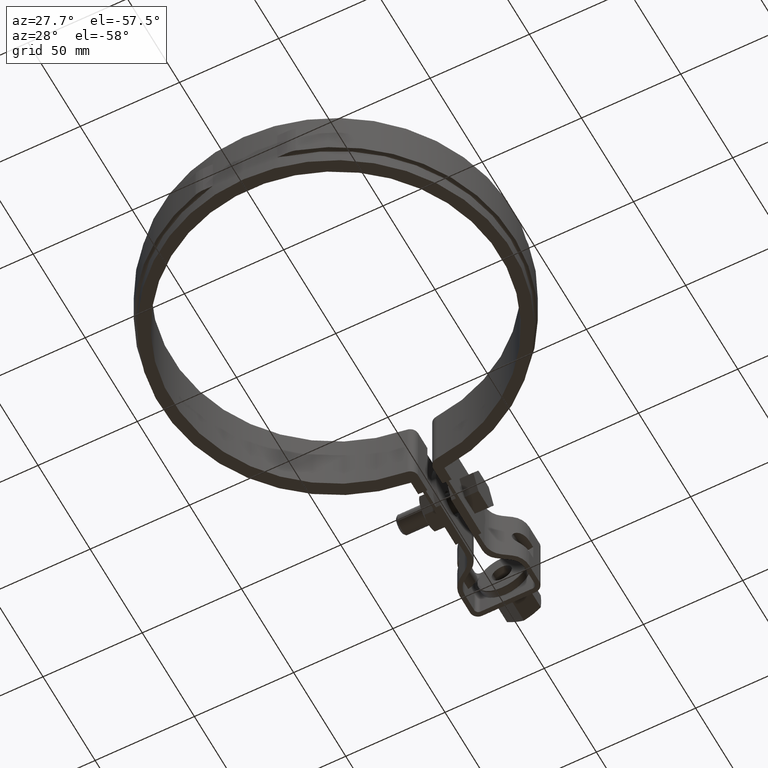
[diagram: clean part render]
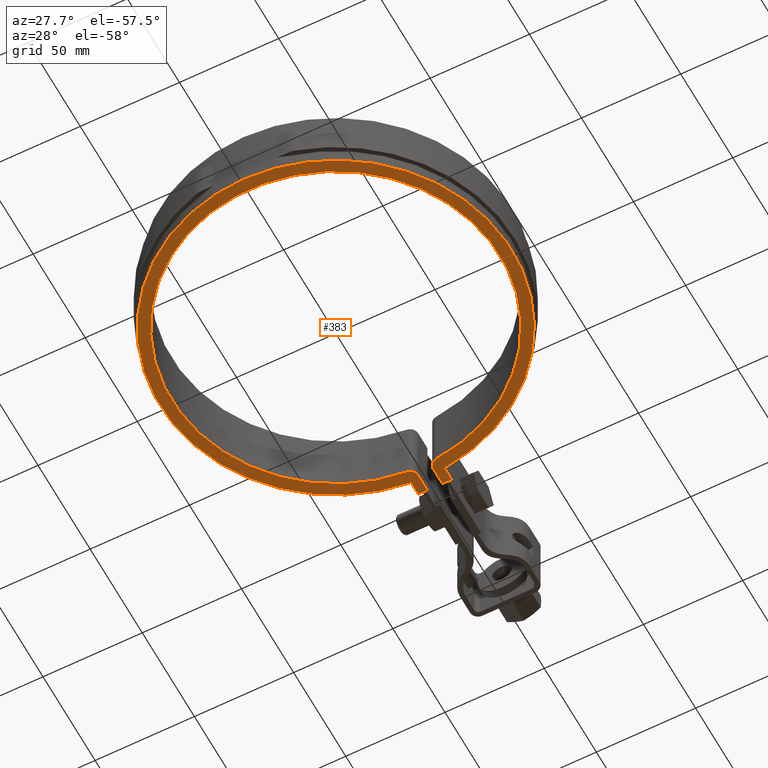
[diagram: same view with one face highlighted and labeled with its STEP entity id]
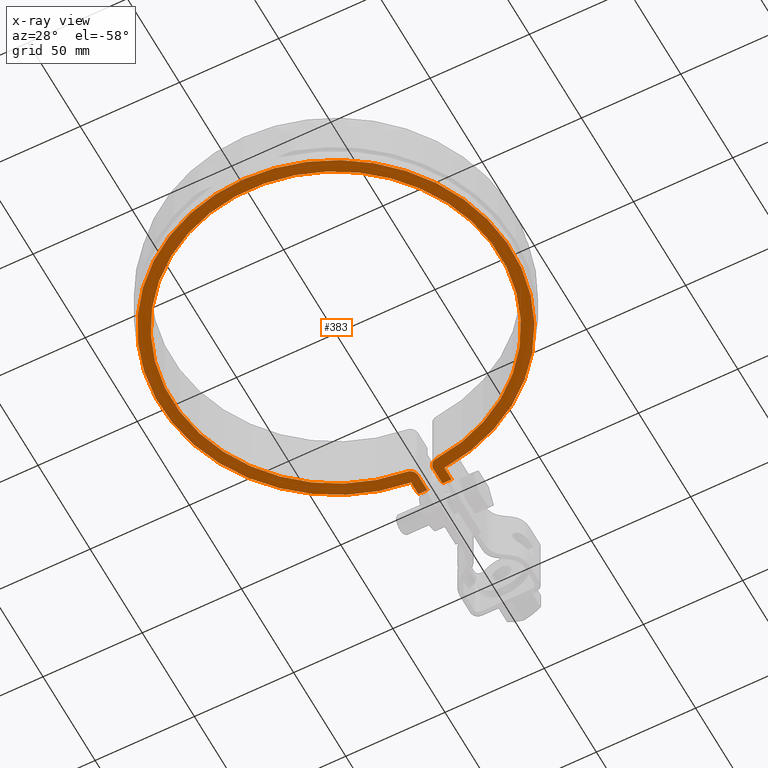
[diagram: x-ray of the same camera — body ghosted, the highlighted face saturated]
A machine part, auxiliary view. The second image highlights one B-rep face of the part: STEP entity #383.
The next image is the same camera in x-ray: the body ghosted, the highlighted face saturated — about 0% of this face is hidden behind the body in this view.
In plain terms, the highlighted planar face has unit normal (-0, 0, 1).
Its self-contained STEP definition (entity closure, byte-faithful):
#383 = ADVANCED_FACE( '', ( #635 ), #636, .F. );
#635 = FACE_OUTER_BOUND( '', #1762, .T. );
#636 = PLANE( '', #1763 );
#1762 = EDGE_LOOP( '', ( #4136, #4137, #4138, #4139, #4140, #4141, #4142, #4143, #4144, #4145 ) );
#1763 = AXIS2_PLACEMENT_3D( '', #4146, #4147, #4148 );
#4136 = ORIENTED_EDGE( '', *, *, #5092, .F. );
#4137 = ORIENTED_EDGE( '', *, *, #5111, .F. );
#4138 = ORIENTED_EDGE( '', *, *, #5170, .F. );
#4139 = ORIENTED_EDGE( '', *, *, #5163, .F. );
#4140 = ORIENTED_EDGE( '', *, *, #5218, .F. );
#4141 = ORIENTED_EDGE( '', *, *, #5219, .F. );
#4142 = ORIENTED_EDGE( '', *, *, #5220, .F. );
#4143 = ORIENTED_EDGE( '', *, *, #5212, .F. );
#4144 = ORIENTED_EDGE( '', *, *, #5148, .F. );
#4145 = ORIENTED_EDGE( '', *, *, #5058, .F. );
#4146 = CARTESIAN_POINT( '', ( 7.80000000000001, 86.2480144698995, -33.5000000000000 ) );
#4147 = DIRECTION( '', ( -1.77428291146426E-052, 2.54514470950043E-019, 1.00000000000000 ) );
#4148 = DIRECTION( '', ( 1.00000000000000, 6.97124570104510E-034, 0.000000000000000 ) );
#5058 = EDGE_CURVE( '', #5611, #5613, #5614, .F. );
#5092 = EDGE_CURVE( '', #5676, #5611, #5678, .F. );
#5111 = EDGE_CURVE( '', #5709, #5676, #5711, .T. );
#5148 = EDGE_CURVE( '', #5613, #5778, #5779, .F. );
#5163 = EDGE_CURVE( '', #5803, #5805, #5806, .F. );
#5170 = EDGE_CURVE( '', #5805, #5709, #5814, .F. );
#5212 = EDGE_CURVE( '', #5778, #5876, #5877, .T. );
#5218 = EDGE_CURVE( '', #5884, #5803, #5885, .F. );
#5219 = EDGE_CURVE( '', #5886, #5884, #5887, .T. );
#5220 = EDGE_CURVE( '', #5876, #5886, #5888, .F. );
#5611 = VERTEX_POINT( '', #7461 );
#5613 = VERTEX_POINT( '', #7464 );
#5614 = LINE( '', #7465, #7466 );
#5676 = VERTEX_POINT( '', #7589 );
#5678 = LINE( '', #7592, #7593 );
#5709 = VERTEX_POINT( '', #7631 );
#5711 = CIRCLE( '', #7634, 88.6000000000001 );
#5778 = VERTEX_POINT( '', #8196 );
#5779 = LINE( '', #8197, #8198 );
#5803 = VERTEX_POINT( '', #8229 );
#5805 = VERTEX_POINT( '', #8232 );
#5806 = LINE( '', #8233, #8234 );
#5814 = LINE( '', #8252, #8253 );
#5876 = VERTEX_POINT( '', #8808 );
#5877 = CIRCLE( '', #8809, 3.99999999999999 );
#5884 = VERTEX_POINT( '', #8818 );
#5885 = LINE( '', #8819, #8820 );
#5886 = VERTEX_POINT( '', #8821 );
#5887 = CIRCLE( '', #8822, 4.00000000000000 );
#5888 = CIRCLE( '', #8823, 82.5999999999999 );
#7461 = CARTESIAN_POINT( '', ( 8.39999999999999, 95.1000000000000, -33.5000000000000 ) );
#7464 = CARTESIAN_POINT( '', ( 3.80000000000002, 95.1000000000000, -33.5000000000000 ) );
#7465 = CARTESIAN_POINT( '', ( 8.39999999999999, 95.1000000000000, -33.5000000000000 ) );
#7466 = VECTOR( '', #9672, 1000.00000000000 );
#7589 = CARTESIAN_POINT( '', ( 8.39999999999999, 88.2009070248147, -33.5000000000000 ) );
#7592 = CARTESIAN_POINT( '', ( 8.39999999999999, 88.2009070248147, -33.5000000000000 ) );
#7593 = VECTOR( '', #9713, 1000.00000000000 );
#7631 = CARTESIAN_POINT( '', ( -8.40000000000000, 88.2009070248147, -33.5000000000000 ) );
#7634 = AXIS2_PLACEMENT_3D( '', #9752, #9753, #9754 );
#8196 = CARTESIAN_POINT( '', ( 3.80000000000002, 86.2480144698995, -33.5000000000000 ) );
#8197 = CARTESIAN_POINT( '', ( 3.80000000000002, 95.1000000000000, -33.5000000000000 ) );
#8198 = VECTOR( '', #9787, 1000.00000000000 );
#8229 = CARTESIAN_POINT( '', ( -3.80000000000000, 95.1000000000000, -33.5000000000000 ) );
#8232 = CARTESIAN_POINT( '', ( -8.40000000000000, 95.1000000000000, -33.5000000000000 ) );
#8233 = CARTESIAN_POINT( '', ( -3.80000000000000, 95.1000000000000, -33.5000000000000 ) );
#8234 = VECTOR( '', #9814, 1000.00000000000 );
#8252 = CARTESIAN_POINT( '', ( -8.40000000000000, 95.1000000000000, -33.5000000000000 ) );
#8253 = VECTOR( '', #9819, 1000.00000000000 );
#8808 = CARTESIAN_POINT( '', ( 7.43972286374134, 82.2642724620520, -33.5000000000000 ) );
#8809 = AXIS2_PLACEMENT_3D( '', #9866, #9867, #9868 );
#8818 = CARTESIAN_POINT( '', ( -3.80000000000000, 86.2480144698995, -33.5000000000000 ) );
#8819 = CARTESIAN_POINT( '', ( -3.80000000000000, 86.2480144698995, -33.5000000000000 ) );
#8820 = VECTOR( '', #9880, 1000.00000000000 );
#8821 = CARTESIAN_POINT( '', ( -7.43972286374142, 82.2642724620520, -33.5000000000000 ) );
#8822 = AXIS2_PLACEMENT_3D( '', #9881, #9882, #9883 );
#8823 = AXIS2_PLACEMENT_3D( '', #9884, #9885, #9886 );
#9672 = DIRECTION( '', ( 1.00000000000000, 4.51580676527027E-071, 1.77428291146426E-052 ) );
#9713 = DIRECTION( '', ( -6.93889390390723E-017, -1.00000000000000, 2.54514470950043E-019 ) );
#9752 = CARTESIAN_POINT( '', ( 6.93889390390723E-015, -9.71445146547012E-014, -33.5000000000000 ) );
#9753 = DIRECTION( '', ( -1.77428291146426E-052, 2.54514470950043E-019, 1.00000000000000 ) );
#9754 = DIRECTION( '', ( 0.000000000000000, -1.00000000000000, 2.54514470950043E-019 ) );
#9787 = DIRECTION( '', ( 6.10365667473321E-017, 1.00000000000000, -2.54514470950043E-019 ) );
#9814 = DIRECTION( '', ( 1.00000000000000, 4.51580676527027E-071, 1.77428291146426E-052 ) );
#9819 = DIRECTION( '', ( 6.93889390390723E-017, 1.00000000000000, -2.54514470950043E-019 ) );
#9866 = CARTESIAN_POINT( '', ( 7.80000000000001, 86.2480144698995, -33.5000000000000 ) );
#9867 = DIRECTION( '', ( -1.77428291146426E-052, 2.54514470950043E-019, 1.00000000000000 ) );
#9868 = DIRECTION( '', ( 0.000000000000000, -1.00000000000000, 2.54514470950043E-019 ) );
#9880 = DIRECTION( '', ( -6.10365667473322E-017, -1.00000000000000, 2.54514470950043E-019 ) );
#9881 = CARTESIAN_POINT( '', ( -7.80000000000000, 86.2480144698995, -33.5000000000000 ) );
#9882 = DIRECTION( '', ( -1.77428291146426E-052, 2.54514470950043E-019, 1.00000000000000 ) );
#9883 = DIRECTION( '', ( 0.000000000000000, -1.00000000000000, 2.54514470950043E-019 ) );
#9884 = CARTESIAN_POINT( '', ( 1.04083408558608E-014, 1.94289029309402E-013, -33.5000000000000 ) );
#9885 = DIRECTION( '', ( -1.77428291146426E-052, 2.54514470950043E-019, 1.00000000000000 ) );
#9886 = DIRECTION( '', ( 0.000000000000000, -1.00000000000000, 2.54514470950043E-019 ) );